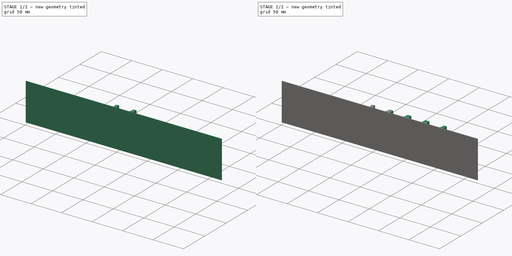
[diagram: build sequence overview — one tinted view per stage of 2, left to right]
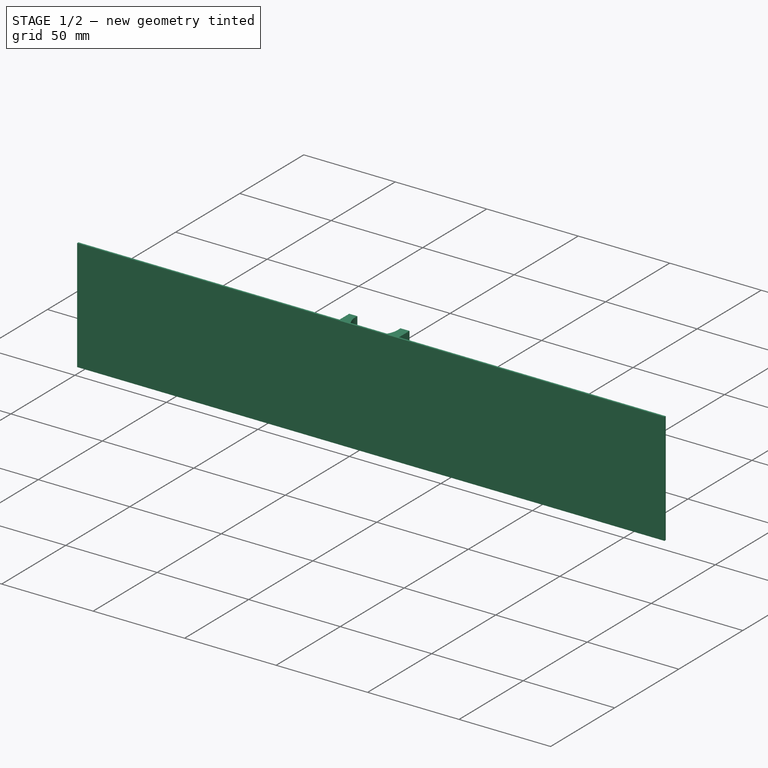
[diagram: stage 1 of 2 — iso view after this stage's code; geometry added in this stage tinted green]
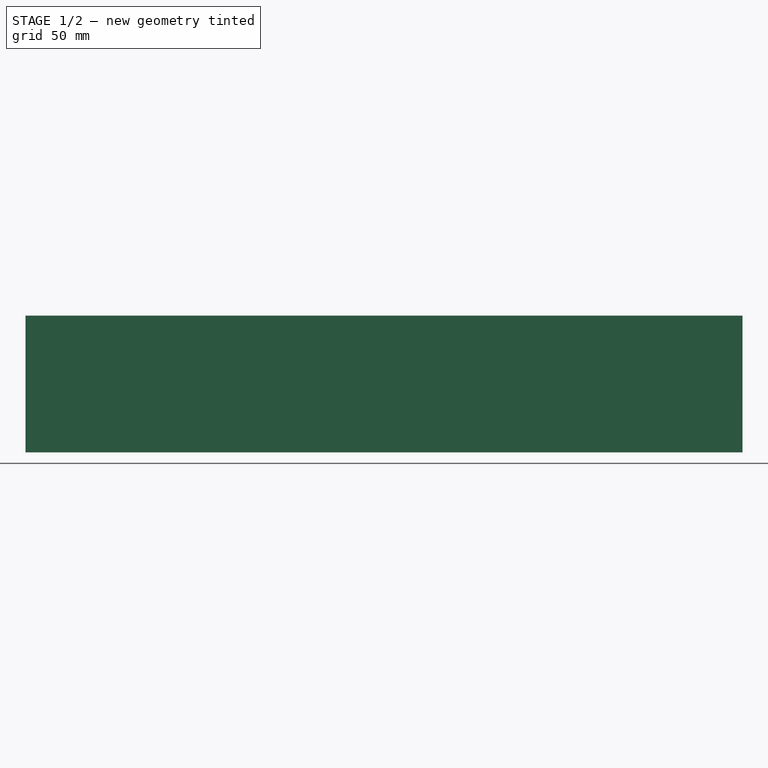
[diagram: stage 1 of 2 — front view after this stage's code; geometry added in this stage tinted green]
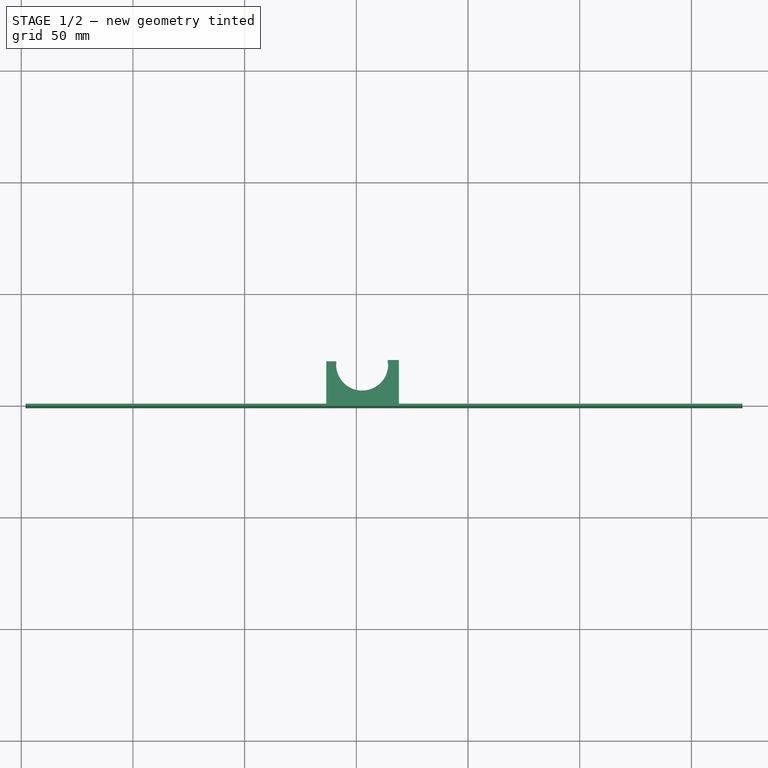
[diagram: stage 1 of 2 — top view after this stage's code; geometry added in this stage tinted green]
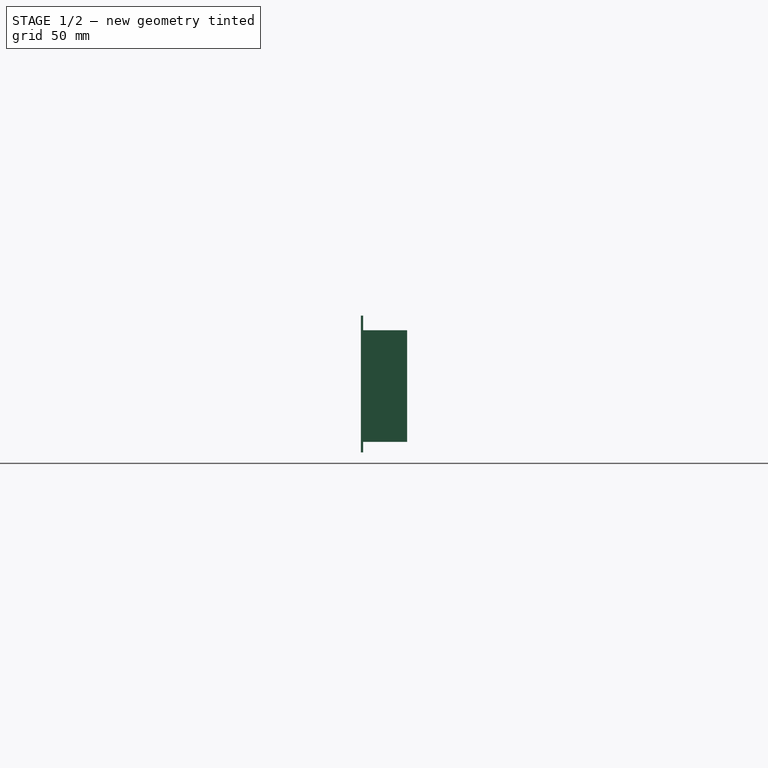
[diagram: stage 1 of 2 — right view after this stage's code; geometry added in this stage tinted green]
FCSTD DOCUMENT  (FreeCAD 2022.111R30764 (Git))
Label: battery charger cr2
License: All rights reserved
LicenseURL: http://en.wikipedia.org/wiki/All_rights_reserved
objects: Sketcher::SketchObject×2, PartDesign::Pad×2, PartDesign::LinearPattern×1, PartDesign::Body×1
note: 12 computed .brp shape members not serialized (recipe doc carries the construction recipe); baked Part::Feature solids carry a one-line shape summary decoded from their .brp

FEATURE [Sketcher::SketchObject] Sketch
  FullyConstrained = false
  MapMode = 5
  Support = -> [XY_Plane]
  TreeRank = 11
  sketch-geometry (6):
    g0: LineSegment StartX=-13.4393 StartY=0 StartZ=0 EndX=19.0751 EndY=0 EndZ=0
    g1: LineSegment StartX=19.0751 StartY=0 StartZ=0 EndX=19.0751 EndY=19.6548 EndZ=0
    g2: LineSegment StartX=19.0751 StartY=19.6548 StartZ=0 EndX=14.0746 EndY=19.6548 EndZ=0
    g3: LineSegment StartX=-13.4393 StartY=0 StartZ=0 EndX=-13.4393 EndY=19.0751 EndZ=0
    g4: LineSegment StartX=-13.4393 StartY=19.0751 StartZ=0 EndX=-8.95954 EndY=19.0751 EndZ=0
    g5: ArcOfCircle CenterX=2.60116 CenterY=17.6301 CenterZ=0 NormalX=0 NormalY=0 NormalZ=1 AngleXU=0 Radius=11.6507 StartAngle=3.01724 EndAngle=6.45786
  constraints (12):
    c: PointOnObject(g0,g-1)
    c: PointOnObject(g0,g-1)
    c: Coincident(g0,g1)
    c: Vertical(g1)
    c: Coincident(g1,g2)
    c: Horizontal(g2)
    c: Coincident(g0,g3)
    c: Vertical(g3)
    c: Coincident(g3,g4)
    c: Horizontal(g4)
    c: Coincident(g5,g4)
    c: Coincident(g5,g2)
FEATURE [Sketcher::SketchObject] Sketch001
  FullyConstrained = false
  MapMode = 5
  Placement = pos=(0,0,0) rot=(1,0,0;1.5708rad)
  Support = -> [XZ_Plane]
  TreeRank = 13
  sketch-geometry (4):
    g0: LineSegment StartX=-148.107 StartY=56.5423 StartZ=0 EndX=172.894 EndY=56.5423 EndZ=0
    g1: LineSegment StartX=172.894 StartY=56.5423 StartZ=0 EndX=172.894 EndY=-4.68289 EndZ=0
    g2: LineSegment StartX=172.894 StartY=-4.68289 StartZ=0 EndX=-148.107 EndY=-4.68289 EndZ=0
    g3: LineSegment StartX=-148.107 StartY=-4.68289 StartZ=0 EndX=-148.107 EndY=56.5423 EndZ=0
  constraints (8):
    c: Coincident(g0,g1)
    c: Coincident(g1,g2)
    c: Coincident(g2,g3)
    c: Coincident(g3,g0)
    c: Horizontal(g0)
    c: Horizontal(g2)
    c: Vertical(g1)
    c: Vertical(g3)
FEATURE [PartDesign::Pad] Pad001
  AddSubType = 0
  AlongSketchNormal = false
  CheckUpToFaceLimits = true
  ClaimChildren = false
  Direction = (0,-1,2e-16)
  Fit = 0
  FitJoin = 0
  InnerFit = 0
  InnerFitJoin = 0
  InnerTaperAngle = 0
  InnerTaperAngleRev = 0
  Length = 1
  Length2 = 100
  Linearize = true
  NewSolid = false
  Placement = pos=(0,0,0) rot=(1,0,0;1.5708rad)
  Profile = -> Sketch001
  Suppress = false
  TreeRank = 14
  Type = 0
  _ProfileBasedVersion = 1
FEATURE [PartDesign::Pad] Pad
  AddSubType = 0
  AlongSketchNormal = false
  BaseFeature = -> Pad001
  CheckUpToFaceLimits = true
  ClaimChildren = false
  Direction = (0,0,1)
  Fit = 0
  FitJoin = 0
  InnerFit = 0
  InnerFitJoin = 0
  InnerTaperAngle = 0
  InnerTaperAngleRev = 0
  Length = 50
  Length2 = 100
  Linearize = true
  NewSolid = false
  Placement = pos=(0,0,0) rot=(1,0,0;1.5708rad)
  Profile = -> Sketch
  Suppress = false
  TreeRank = 12
  Type = 0
  _ProfileBasedVersion = 1
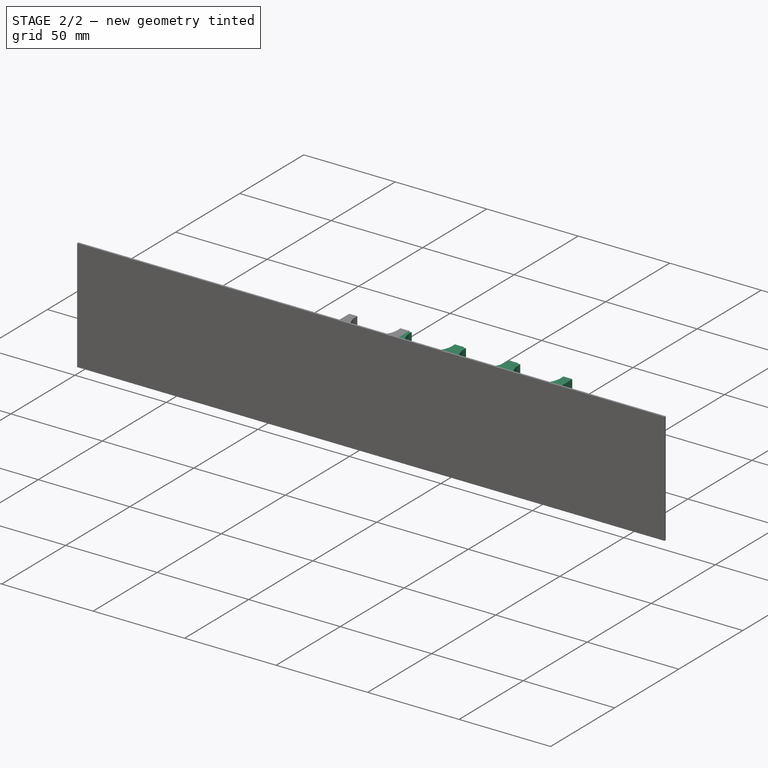
[diagram: stage 2 of 2 — iso view after this stage's code; geometry added in this stage tinted green]
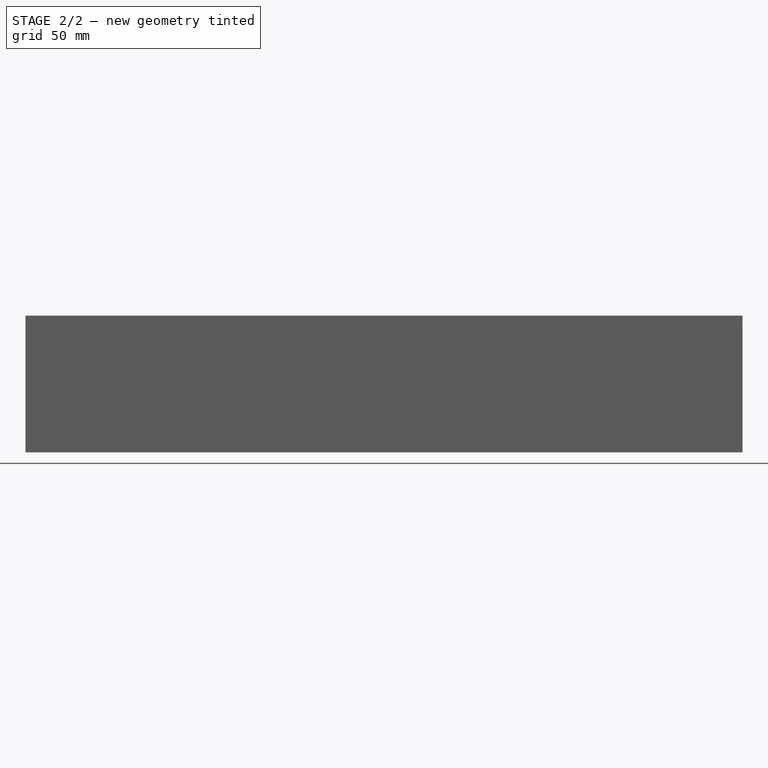
[diagram: stage 2 of 2 — front view after this stage's code; geometry added in this stage tinted green]
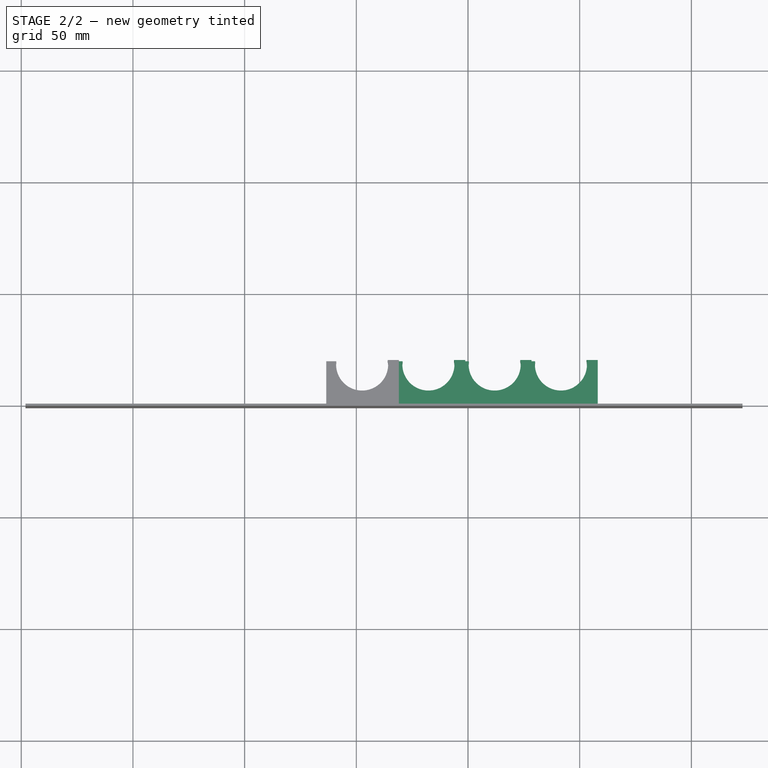
[diagram: stage 2 of 2 — top view after this stage's code; geometry added in this stage tinted green]
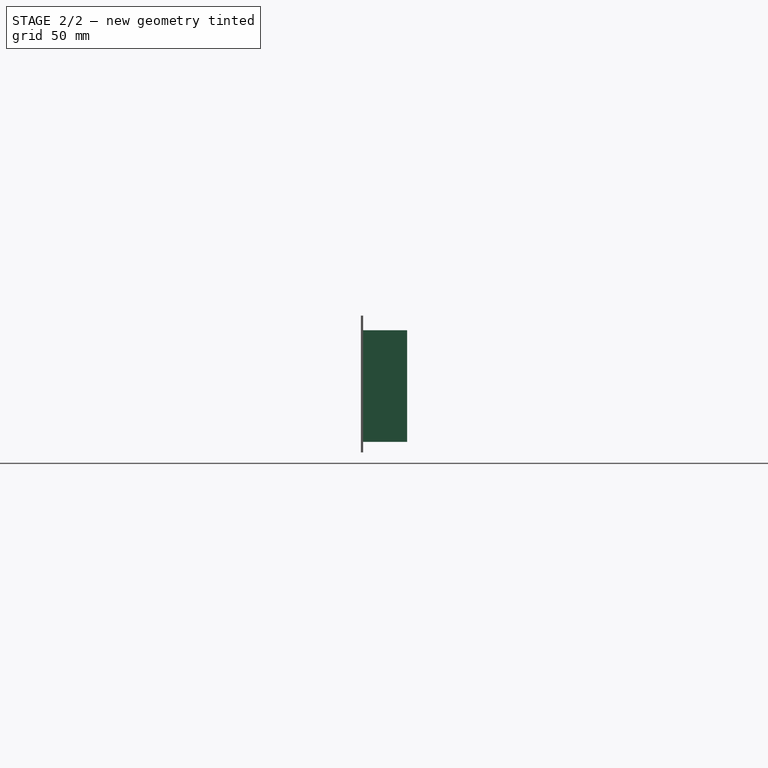
[diagram: stage 2 of 2 — right view after this stage's code; geometry added in this stage tinted green]
FEATURE [PartDesign::LinearPattern] LinearPattern
  AddSubType = 0
  BaseFeature = -> Pad
  CopyShape = false
  Direction = -> Sketch [H_Axis]
  Length = 89
  NewSolid = false
  Occurrences = 4
  OriginalSubs = -> [Pad]
  Originals = -> [Pad]
  ParallelTransform = true
  Placement = pos=(0,0,0) rot=(1,0,0;1.5708rad)
  SubTransform = true
  Suppress = false
  TreeRank = 15
  _Version = 3
FEATURE [PartDesign::Body] Body
  AutoGroupSolids = false
  ExportMode = 0
  Group = -> [Sketch,Sketch001,Pad001,Pad,LinearPattern]
  Origin = -> Origin
  Tip = -> LinearPattern
  TreeRank = 10
  _ExportChildren = -> [Pad001,Pad,LinearPattern]
  _GroupVersion = 1
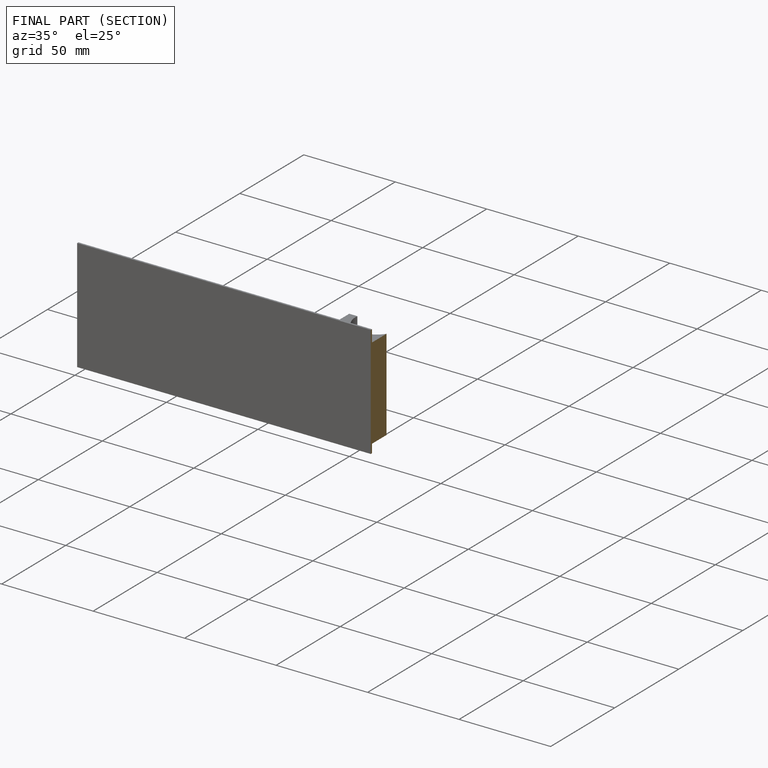
[diagram: finished part — half-section view (interior)]
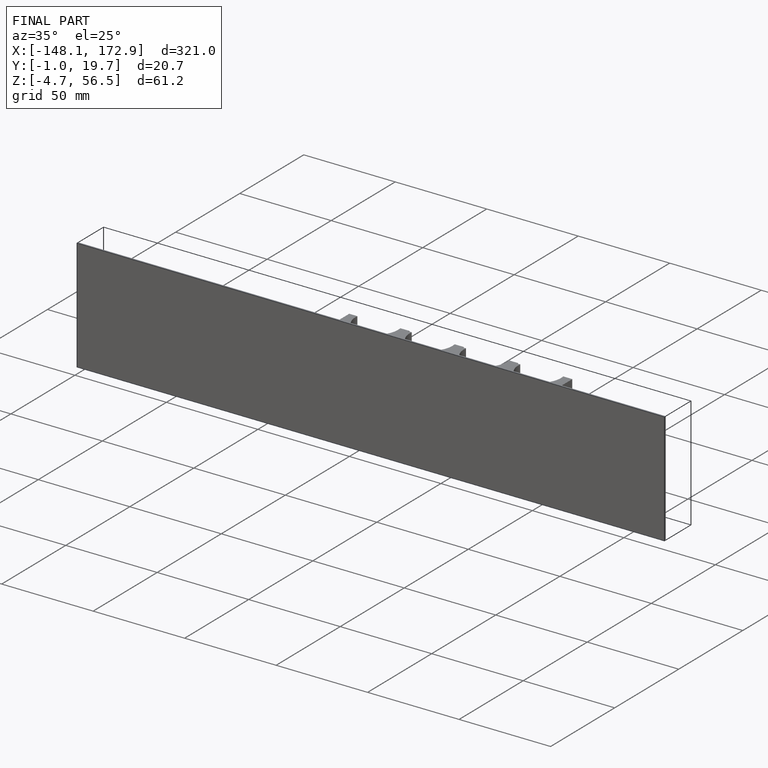
[diagram: finished part — iso view with bounding-box wireframe]
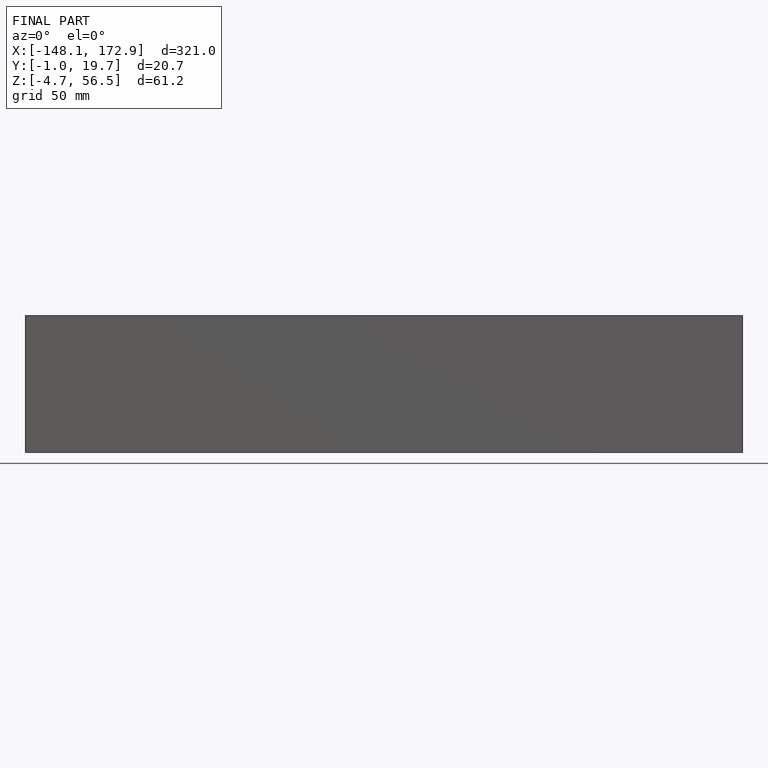
[diagram: finished part — front view with bounding-box wireframe]
